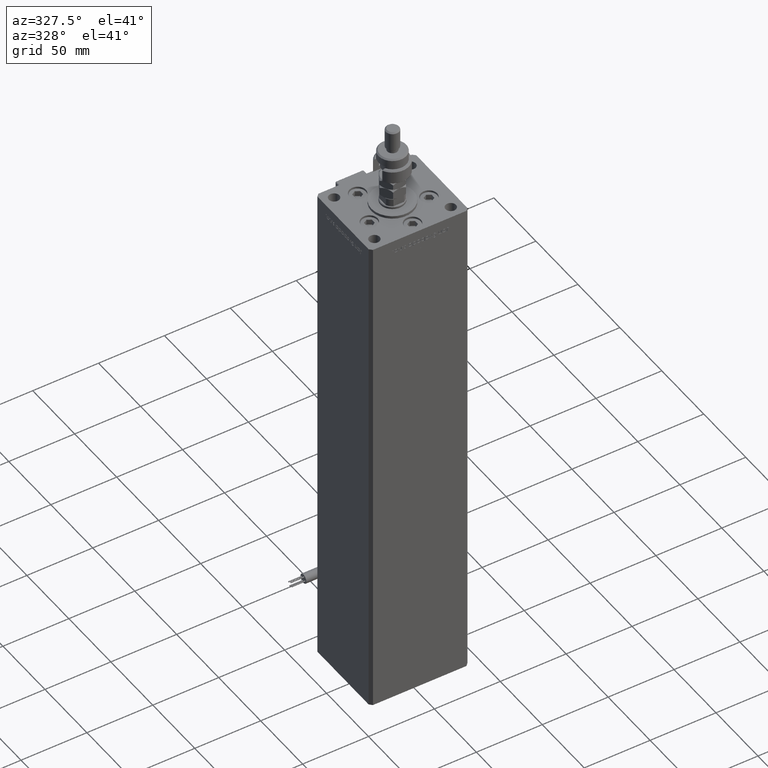
[diagram: clean part render]
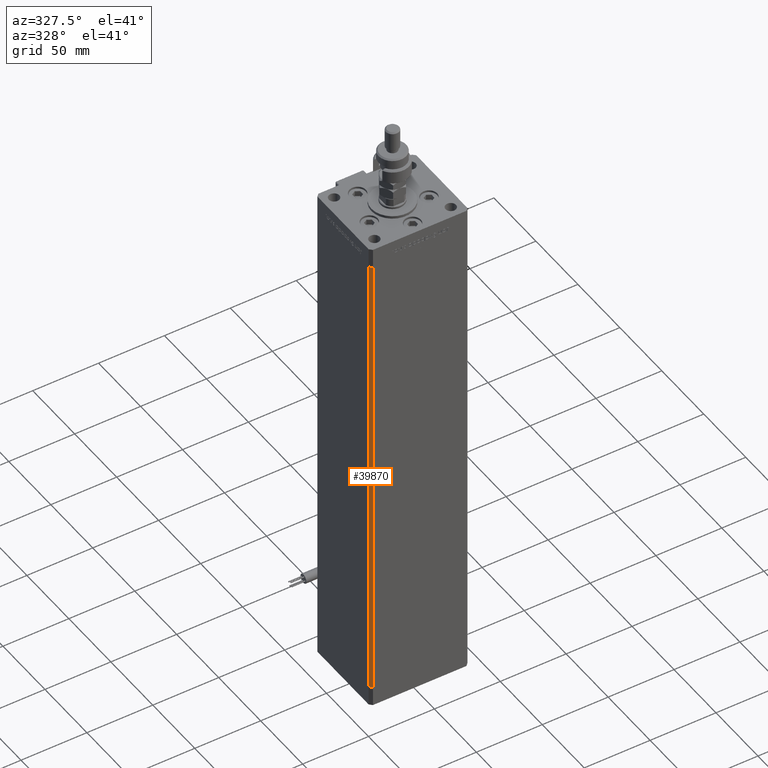
[diagram: same view with one face highlighted and labeled with its STEP entity id]
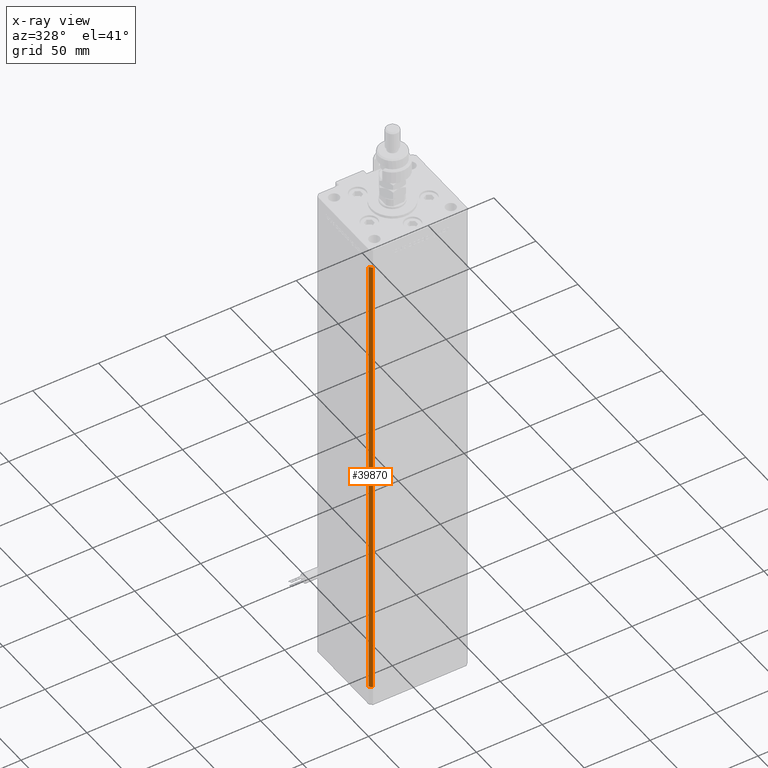
[diagram: x-ray of the same camera — body ghosted, the highlighted face saturated]
A machine part, auxiliary view. The second image highlights one B-rep face of the part: STEP entity #39870.
The next image is the same camera in x-ray: the body ghosted, the highlighted face saturated — about 0% of this face is hidden behind the body in this view.
In plain terms, the highlighted planar face has unit normal (0.7071, 0.7071, 0).
Its self-contained STEP definition (entity closure, byte-faithful):
#6554 = CARTESIAN_POINT ( 'NONE',  ( -37.49999999999999289, -30.50000000000000000, 356.0000000000000000 ) ) ;
#12946 = VERTEX_POINT ( 'NONE', #22939 ) ;
#13267 = EDGE_LOOP ( 'NONE', ( #48170, #26122, #22903, #52726 ) ) ;
#14631 = DIRECTION ( 'NONE',  ( 0.7071067811865475727, 0.7071067811865475727, -0.000000000000000000 ) ) ;
#15671 = VECTOR ( 'NONE', #52265, 1000.000000000000114 ) ;
#16136 = LINE ( 'NONE', #6554, #23738 ) ;
#17132 = DIRECTION ( 'NONE',  ( -0.000000000000000000, -0.000000000000000000, -1.000000000000000000 ) ) ;
#19578 = VERTEX_POINT ( 'NONE', #57449 ) ;
#20224 = DIRECTION ( 'NONE',  ( 0.7071067811865474617, -0.7071067811865474617, 0.000000000000000000 ) ) ;
#22903 = ORIENTED_EDGE ( 'NONE', *, *, #41183, .F. ) ;
#22939 = CARTESIAN_POINT ( 'NONE',  ( -37.49999999999999289, -30.50000000000000000, 0.000000000000000000 ) ) ;
#23633 = CARTESIAN_POINT ( 'NONE',  ( -35.49999999999999289, -32.50000000000000000, 356.0000000000000000 ) ) ;
#23738 = VECTOR ( 'NONE', #20224, 1000.000000000000114 ) ;
#25001 = PLANE ( 'NONE',  #34831 ) ;
#25473 = CARTESIAN_POINT ( 'NONE',  ( -37.49999999999999289, -30.50000000000000000, 0.000000000000000000 ) ) ;
#26122 = ORIENTED_EDGE ( 'NONE', *, *, #44435, .F. ) ;
#29270 = LINE ( 'NONE', #25473, #15671 ) ;
#32058 = VECTOR ( 'NONE', #17132, 1000.000000000000000 ) ;
#32089 = DIRECTION ( 'NONE',  ( -0.000000000000000000, -0.000000000000000000, -1.000000000000000000 ) ) ;
#32445 = VERTEX_POINT ( 'NONE', #34555 ) ;
#34555 = CARTESIAN_POINT ( 'NONE',  ( -35.49999999999999289, -32.50000000000000000, 0.000000000000000000 ) ) ;
#34831 = AXIS2_PLACEMENT_3D ( 'NONE', #54834, #14631, #42744 ) ;
#35944 = VECTOR ( 'NONE', #32089, 1000.000000000000000 ) ;
#37977 = CARTESIAN_POINT ( 'NONE',  ( -37.49999999999999289, -30.50000000000000000, 356.0000000000000000 ) ) ;
#39241 = LINE ( 'NONE', #48269, #32058 ) ;
#39870 = ADVANCED_FACE ( 'NONE', ( #41106 ), #25001, .F. ) ;
#40012 = EDGE_CURVE ( 'NONE', #51500, #12946, #39241, .T. ) ;
#41106 = FACE_OUTER_BOUND ( 'NONE', #13267, .T. ) ;
#41183 = EDGE_CURVE ( 'NONE', #51500, #19578, #16136, .T. ) ;
#42744 = DIRECTION ( 'NONE',  ( -0.7071067811865474617, 0.7071067811865474617, 0.000000000000000000 ) ) ;
#44435 = EDGE_CURVE ( 'NONE', #19578, #32445, #55109, .T. ) ;
#48170 = ORIENTED_EDGE ( 'NONE', *, *, #52338, .T. ) ;
#48269 = CARTESIAN_POINT ( 'NONE',  ( -37.49999999999999289, -30.50000000000000000, 356.0000000000000000 ) ) ;
#51500 = VERTEX_POINT ( 'NONE', #37977 ) ;
#52265 = DIRECTION ( 'NONE',  ( 0.7071067811865474617, -0.7071067811865474617, 0.000000000000000000 ) ) ;
#52338 = EDGE_CURVE ( 'NONE', #12946, #32445, #29270, .T. ) ;
#52726 = ORIENTED_EDGE ( 'NONE', *, *, #40012, .T. ) ;
#54834 = CARTESIAN_POINT ( 'NONE',  ( -37.49999999999999289, -30.50000000000000000, 356.0000000000000000 ) ) ;
#55109 = LINE ( 'NONE', #23633, #35944 ) ;
#57449 = CARTESIAN_POINT ( 'NONE',  ( -35.49999999999999289, -32.50000000000000000, 356.0000000000000000 ) ) ;